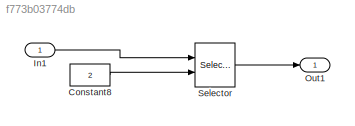
MODEL slx_f773b03774db
KIND model
CONFIG AbsTol = auto
CONFIG EnableMultiTasking = on
CONFIG FixedStep = 0.1
CONFIG MaxStep = 1
CONFIG MinStep = auto
CONFIG RelTol = 1e-3
CONFIG SampleTimeConstraint = Unconstrained
CONFIG Solver = FixedStepAuto
CONFIG SolverName = FixedStepAuto
CONFIG StartTime = 0.0
CONFIG StopTime = 0
BLOCK [Constant] Constant8
  Value = 2
BLOCK [Inport] In1
  IconDisplay = Port number
  PortDimensions = 3
BLOCK [Outport] Out1
  IconDisplay = Port number
BLOCK [Selector] Selector
  IndexMode = Zero-based
  IndexOptions = Starting index (port)
  Indices = [1 0 0]
  InputPortWidth = 3
  OutputSizes = 1
  Ports = [2, 1]
LINE Constant8:1 -> Selector:2
LINE In1:1 -> Selector:1
LINE Selector:1 -> Out1:1
